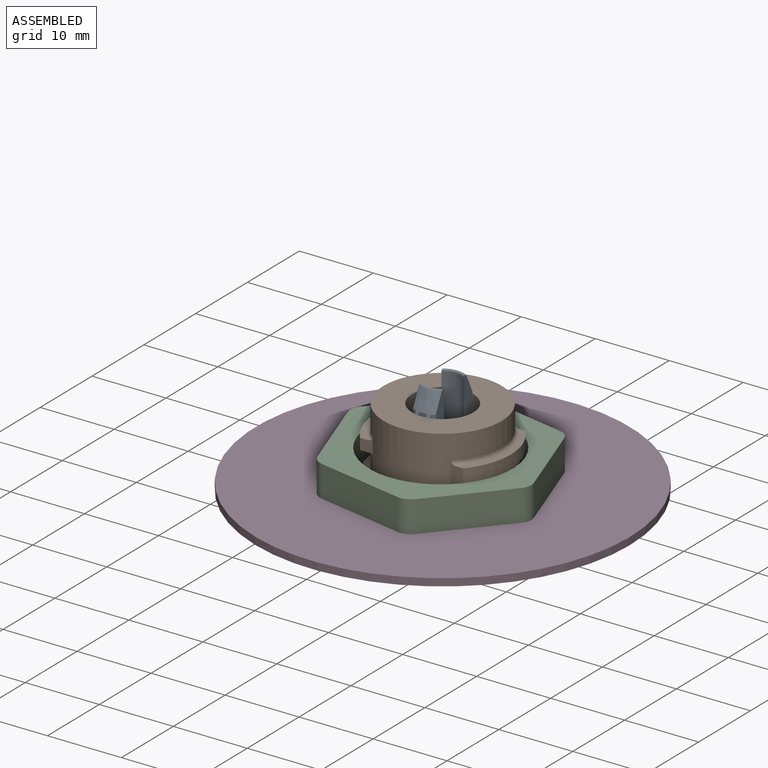
[diagram: assembled view]
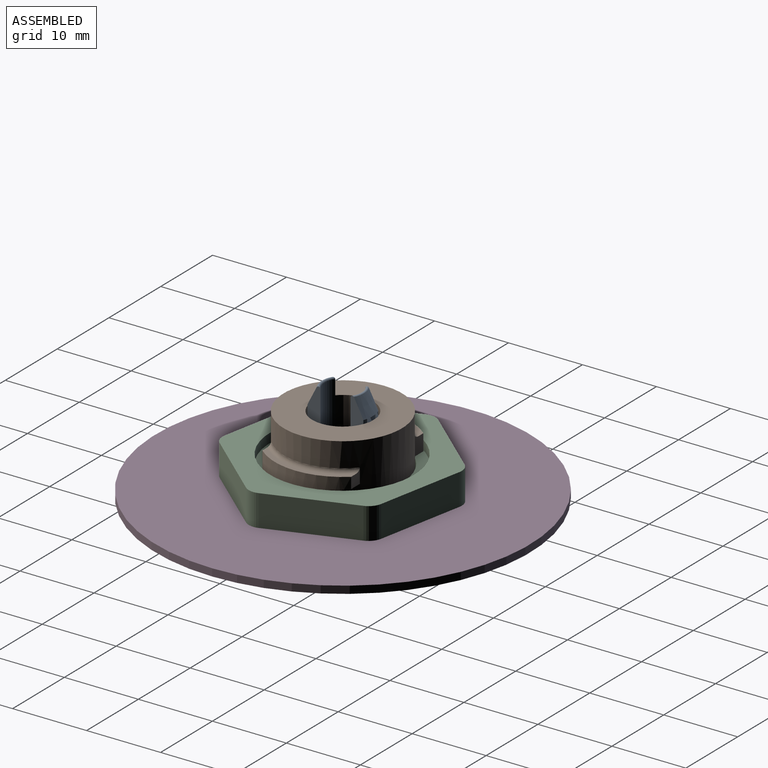
[diagram: assembled view, second angle]
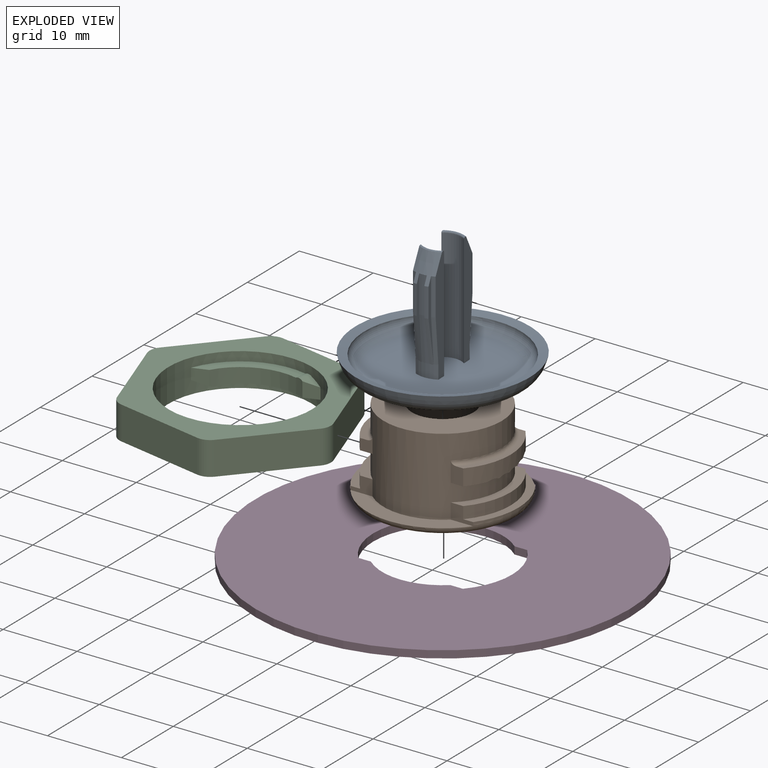
[diagram: exploded view]
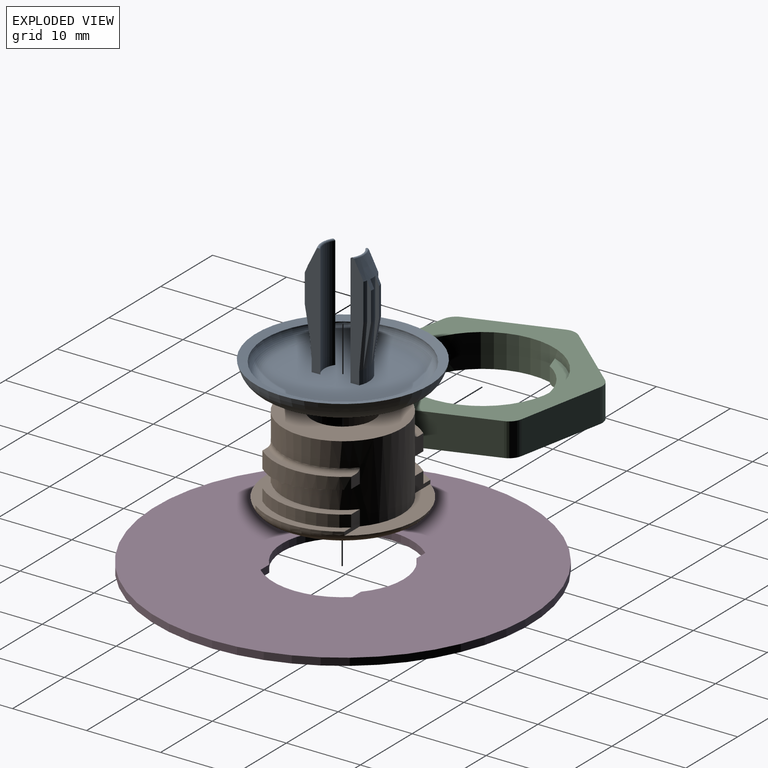
[diagram: exploded view, second angle]
ASSEMBLY  parts=4 mates=2
PART A: 42 faces, bbox 25.4x25.4x17 mm
  f0: plane 15.48x1.81mm, normal (0,-1,0), area 22mm2, adj f1,f11,f24,f32,f33,f34,f41
  f1: cylinder r=2.5mm len=15.18mm, axis (0,0,-1), area 48.8mm2, adj f0,f2,f24,f41
  f2: plane 15.48x1.81mm, normal (0,1,0), area 22mm2, adj f1,f12,f24,f32,f33,f34,f41
  f3: plane 15.48x1.81mm, normal (0,1,0), area 22mm2, adj f4,f19,f24,f29,f30,f31,f40
  f4: cylinder r=2.5mm len=15.18mm, axis (0,0,-1), area 48.8mm2, adj f3,f5,f24,f40
  f5: plane 15.48x1.81mm, normal (0,-1,0), area 22mm2, adj f4,f20,f24,f29,f30,f31,f40
  f6: plane 11x1.02mm, normal (0,-1,0), area 3.8mm2, adj f7,f14,f32,f34,f37
  f7: cylinder r=4mm len=5mm, axis (0,0,-1), area 5mm2, adj f6,f8,f32,f34
  f8: plane 11x1.02mm, normal (0,1,0), area 3.8mm2, adj f7,f9,f32,f34,f39
  f9: cylinder r=4.5mm len=3.92mm, axis (0,0,-1), area 2mm2, adj f8,f10,f32,f39
  f10: plane 11.01x1.07mm, normal (0,-1,0), area 3.8mm2, adj f9,f11,f32,f34,f39
  f11: cylinder r=4mm len=5mm, axis (0,0,-1), area 2.6mm2, adj f0,f10,f32,f34
  f12: cylinder r=4mm len=5mm, axis (0,0,-1), area 2.6mm2, adj f2,f13,f32,f34
  f13: plane 11.01x1.07mm, normal (0,1,0), area 3.8mm2, adj f12,f14,f32,f34,f37
  f14: cylinder r=4.5mm len=3.92mm, axis (0,0,-1), area 2mm2, adj f6,f13,f32,f37
  f15: cylinder r=4mm len=5mm, axis (0,0,-1), area 5mm2, adj f16,f23,f29,f30
  f16: plane 11x1.02mm, normal (0,-1,0), area 3.8mm2, adj f15,f17,f29,f30,f36
  f17: cylinder r=4.5mm len=3.92mm, axis (0,0,-1), area 2mm2, adj f16,f18,f29,f36
  f18: plane 11.01x1.07mm, normal (0,1,0), area 3.8mm2, adj f17,f19,f29,f30,f36
  f19: cylinder r=4mm len=5mm, axis (0,0,-1), area 2.6mm2, adj f3,f18,f29,f30
  f20: cylinder r=4mm len=5mm, axis (0,0,-1), area 2.6mm2, adj f5,f21,f29,f30
  f21: plane 11.01x1.07mm, normal (0,-1,0), area 3.8mm2, adj f20,f22,f29,f30,f38
  f22: cylinder r=4.5mm len=3.92mm, axis (0,0,-1), area 2mm2, adj f21,f23,f29,f38
  f23: plane 11x1.02mm, normal (0,1,0), area 3.8mm2, adj f15,f22,f29,f30,f38
  f24: plane 18.1x18.1mm, normal (0,0,1), area 251mm2, adj f0,f1,f2,f3,f4,f5,f27,f31
  f25: cone r=11.44mm half-angle=16.7deg, axis (0,0,1), area 49.8mm2, adj f28,f35
  f26: sphere r=77.14mm, area 257.2mm2, adj f35
  f27: torus R=9.05mm, axis (0,0,-1), area 148.1mm2, adj f24,f28
  f28: cone r=10.55mm half-angle=76deg, axis (0,0,1), area 86.7mm2, adj f25,f27
  f29: cone r=4.5mm half-angle=24.4deg, axis (0,0,-1), area 9.8mm2, adj f3,f5,f15,f16,f17,f18,f19,f20
  f30: cone r=4mm half-angle=4.8deg, axis (0,0,1), area 12.5mm2, adj f3,f5,f15,f16,f18,f19,f20,f21
  f31: cylinder r=3.5mm len=3mm, axis (0,0,1), area 5.6mm2, adj f3,f5,f24,f30
  f32: cone r=4.5mm half-angle=24.4deg, axis (0,0,-1), area 9.8mm2, adj f0,f2,f6,f7,f8,f9,f10,f11
  f33: cylinder r=3.5mm len=3mm, axis (0,0,1), area 5.6mm2, adj f0,f2,f24,f34
  f34: cone r=4mm half-angle=4.8deg, axis (0,0,1), area 12.5mm2, adj f0,f2,f6,f7,f8,f10,f11,f12
  f35: torus R=8.68mm, axis (0,0,1), area 230.1mm2, adj f25,f26
  f36: cone r=4.5mm half-angle=9.5deg, axis (0,0,1), area 3.1mm2, adj f16,f17,f18,f30
  f37: cone r=4.5mm half-angle=9.5deg, axis (0,0,1), area 3.1mm2, adj f6,f13,f14,f34
  f38: cone r=4.5mm half-angle=9.5deg, axis (0,0,1), area 3.1mm2, adj f21,f22,f23,f30
  f39: cone r=4.5mm half-angle=9.5deg, axis (0,0,1), area 3.1mm2, adj f8,f9,f10,f34
  f40: torus R=2.7mm, axis (0,0,-1), area 1.7mm2, adj f3,f4,f5,f29
  f41: torus R=2.7mm, axis (0,0,-1), area 1.7mm2, adj f0,f1,f2,f32
PART B: 51 faces, bbox 22.2x22.2x11.5 mm
  f0: plane 12x3.28mm, normal (0,0,1), area 13.6mm2, adj f1,f5,f6,f42
  f1: cylinder r=10.25mm len=12mm, axis (0,0,-1), area 3.8mm2, adj f0,f2,f5,f6
  f2: torus R=9.05mm, axis (0,0,-1), area 108.5mm2, adj f1,f3,f4,f5,f6,f37,f38,f49
  f3: plane 3.03x2.11mm, normal (0,1,0), area 4.2mm2, adj f2,f35,f36,f37,f43,f44,f50
  f4: plane 3.03x2.11mm, normal (0,-1,0), area 4.2mm2, adj f2,f35,f36,f37,f43,f44,f49
  f5: plane 3.03x2.11mm, normal (0,-1,0), area 4.2mm2, adj f0,f1,f2,f35,f42,f45,f49
  f6: plane 3.03x2.11mm, normal (0,1,0), area 4.2mm2, adj f0,f1,f2,f35,f42,f45,f50
  f7: plane 2.7x1.68mm, normal (0,1,0), area 3.8mm2, adj f8,f32,f35,f40,f46
  f8: plane 3.22x2.5mm, normal (0,0,-1), area 3.7mm2, adj f7,f34,f35,f40
  f9: plane 2.7x1.68mm, normal (0,-1,0), area 3.8mm2, adj f10,f20,f35,f41,f47
  f10: plane 3.22x2.5mm, normal (0,0,-1), area 3.7mm2, adj f9,f22,f35,f41
  f11: plane 2.7x1.43mm, normal (0,0.09,-1), area 2.2mm2, adj f12,f21,f35,f41
  f12: cylinder r=1.95mm len=2.11mm, axis (1,0,0), area 2mm2, adj f11,f13,f35,f41
  f13: plane 1.34x0.15mm, normal (0,0.09,-1), area 0.2mm2, adj f12,f14,f35,f41
  f14: cylinder r=1.95mm len=1.64mm, axis (1,0,0), area 1.9mm2, adj f13,f15,f35,f41
  f15: plane 1.24x0.15mm, normal (0,0.09,-1), area 0.2mm2, adj f14,f16,f35,f41
  f16: cylinder r=1.95mm len=1.49mm, axis (1,0,0), area 1.9mm2, adj f15,f17,f35,f41
  f17: plane 1.21x0.15mm, normal (0,0.09,-1), area 0.2mm2, adj f16,f18,f35,f41
  f18: cylinder r=1.95mm len=1.49mm, axis (1,0,0), area 1.9mm2, adj f17,f19,f35,f41
  f19: plane 1.27x0.15mm, normal (0,0.09,-1), area 0.2mm2, adj f18,f22,f35,f41
  f20: plane 12x3.18mm, normal (0,0,1), area 9.2mm2, adj f9,f21,f41,f47
  f21: plane 2x1.68mm, normal (0,1,0), area 2.6mm2, adj f11,f20,f35,f41,f47
  f22: cylinder r=1.95mm len=1.79mm, axis (1,0,0), area 2mm2, adj f10,f19,f35,f41
  f23: plane 2.7x1.43mm, normal (0,-0.09,-1), area 2.2mm2, adj f24,f33,f35,f40
  f24: cylinder r=1.95mm len=2.11mm, axis (-1,0,0), area 2mm2, adj f23,f25,f35,f40
  f25: plane 1.34x0.15mm, normal (0,-0.09,-1), area 0.2mm2, adj f24,f26,f35,f40
  f26: cylinder r=1.95mm len=1.64mm, axis (-1,0,0), area 1.9mm2, adj f25,f27,f35,f40
  f27: plane 1.24x0.15mm, normal (0,-0.09,-1), area 0.2mm2, adj f26,f28,f35,f40
  f28: cylinder r=1.95mm len=1.49mm, axis (-1,0,0), area 1.8mm2, adj f27,f29,f35,f40
  f29: plane 1.21x0.15mm, normal (0,-0.09,-1), area 0.2mm2, adj f28,f30,f35,f40
  f30: cylinder r=1.95mm len=1.49mm, axis (-1,0,0), area 1.9mm2, adj f29,f31,f35,f40
  f31: plane 1.27x0.15mm, normal (0,-0.09,-1), area 0.2mm2, adj f30,f34,f35,f40
  f32: plane 12x3.18mm, normal (0,0,1), area 9.2mm2, adj f7,f33,f40,f46
  f33: plane 2x1.68mm, normal (0,-1,0), area 2.6mm2, adj f23,f32,f35,f40,f46
  f34: cylinder r=1.95mm len=1.79mm, axis (-1,0,0), area 2mm2, adj f8,f31,f35,f40
  f35: cylinder r=8mm len=16mm, axis (0,0,-1), area 405.6mm2, adj f3,f4,f5,f6,f7,f8,f9,f10
  f36: plane 12x3.28mm, normal (0,0,1), area 13.6mm2, adj f3,f4,f37,f43
  f37: cylinder r=10.25mm len=12mm, axis (0,0,-1), area 3.8mm2, adj f2,f3,f4,f36
  f38: plane 18.1x18.1mm, normal (0,0,-1), area 203.2mm2, adj f2,f39
  f39: cylinder r=4.15mm len=11.5mm, axis (0,0,-1), area 299.9mm2, adj f38,f48
  f40: cylinder r=9.2mm len=12mm, axis (0,0,1), area 24.9mm2, adj f7,f8,f23,f24,f25,f26,f27,f28
  f41: cylinder r=9.2mm len=12mm, axis (0,0,1), area 24.9mm2, adj f9,f10,f11,f12,f13,f14,f15,f16
  f42: cylinder r=9.2mm len=12mm, axis (0,0,1), area 20.9mm2, adj f0,f5,f6,f45
  f43: cylinder r=9.2mm len=12mm, axis (0,0,1), area 20.9mm2, adj f3,f4,f36,f44
  f44: plane 12x3.91mm, normal (0,0,1), area 16mm2, adj f3,f4,f35,f43
  f45: plane 12x3.91mm, normal (0,0,1), area 16mm2, adj f5,f6,f35,f42
  f46: torus R=8.5mm, axis (0,0,-1), area 10.6mm2, adj f7,f32,f33,f35
  f47: torus R=8.5mm, axis (0,0,1), area 10.6mm2, adj f9,f20,f21,f35
  f48: plane 16x16mm, normal (0,0,1), area 147mm2, adj f35,f39
  f49: plane 16.58x4.23mm, normal (0,0,1), area 34.6mm2, adj f2,f4,f5,f35
  f50: plane 16.58x4.23mm, normal (0,0,1), area 34.6mm2, adj f2,f3,f6,f35
PART C: 33 faces, bbox 26.9x27.7x4.5 mm
  f0: cylinder r=1.28mm len=2.03mm, axis (0.66,0.75,0), area 1.9mm2, adj f1,f7,f8,f32
  f1: cylinder r=9.7mm len=19.4mm, axis (0,0,-1), area 207.6mm2, adj f0,f2,f3,f4,f5,f8,f9,f10
  f2: cylinder r=1.28mm len=2.03mm, axis (-0.66,-0.75,0), area 1.9mm2, adj f1,f5,f6,f31
  f3: plane 11.26x6.27mm, normal (0,0,1), area 18.4mm2, adj f1,f6,f11,f29
  f4: plane 11.26x6.27mm, normal (0,0,1), area 18.4mm2, adj f1,f7,f10,f27
  f5: plane 12.58x4.59mm, normal (0,0,-1), area 18.4mm2, adj f1,f2,f6,f9
  f6: cylinder r=8.2mm len=10.15mm, axis (0,0,-1), area 23.6mm2, adj f2,f3,f5,f9,f11,f29,f30
  f7: cylinder r=8.2mm len=10.15mm, axis (0,0,-1), area 23.6mm2, adj f0,f4,f8,f10,f12,f27
  f8: plane 12.58x4.59mm, normal (0,0,-1), area 18.4mm2, adj f0,f1,f7,f12
  f9: plane 2x1.98mm, normal (-0.95,-0.33,0), area 3.7mm2, adj f1,f5,f6,f30
  f10: plane 2x1.98mm, normal (0.95,0.33,0), area 3.7mm2, adj f1,f4,f7,f32
  f11: plane 2x1.98mm, normal (-0.95,-0.33,0), area 3.7mm2, adj f1,f3,f6,f31
  f12: plane 2x1.98mm, normal (0.95,0.33,0), area 3.7mm2, adj f1,f7,f8,f28
  f13: plane 11.43x4.5mm, normal (-0.33,0.95,0), area 54.4mm2, adj f19,f20,f25,f26
  f14: plane 9.13x7.93mm, normal (-0.66,-0.75,0), area 54.4mm2, adj f21,f22,f25,f26
  f15: plane 11.87x4.5mm, normal (0.98,-0.19,0), area 54.4mm2, adj f23,f24,f25,f26
  f16: plane 11.43x4.5mm, normal (0.33,-0.95,0), area 54.4mm2, adj f22,f23,f25,f26
  f17: plane 11.87x4.5mm, normal (-0.98,0.19,0), area 54.4mm2, adj f20,f21,f25,f26
  f18: plane 9.13x7.93mm, normal (0.66,0.75,0), area 54.4mm2, adj f19,f24,f25,f26
  f19: cylinder r=2mm len=4.5mm, axis (0,0,1), area 9.4mm2, adj f13,f18,f25,f26
  f20: cylinder r=2mm len=4.5mm, axis (0,0,1), area 9.4mm2, adj f13,f17,f25,f26
  f21: cylinder r=2mm len=4.5mm, axis (0,0,1), area 9.4mm2, adj f14,f17,f25,f26
  f22: cylinder r=2mm len=4.5mm, axis (0,0,1), area 9.4mm2, adj f14,f16,f25,f26
  f23: cylinder r=2mm len=4.5mm, axis (0,0,1), area 9.4mm2, adj f15,f16,f25,f26
  f24: cylinder r=2mm len=4.5mm, axis (0,0,1), area 9.4mm2, adj f15,f18,f25,f26
  f25: plane 27.74x26.86mm, normal (0,0,1), area 241.9mm2, adj f1,f13,f14,f15,f16,f17,f18,f19
  f26: plane 27.74x26.86mm, normal (0,0,-1), area 241.9mm2, adj f1,f13,f14,f15,f16,f17,f18,f19
  f27: cylinder r=1.28mm len=1.84mm, axis (0.98,-0.19,0), area 1.9mm2, adj f1,f4,f7,f28
  f28: plane 1.99x1.5mm, normal (0.05,0.26,0.96), area 1.5mm2, adj f1,f12,f27
  f29: cylinder r=1.26mm len=1.84mm, axis (-0.98,0.19,0), area 1.9mm2, adj f1,f3,f6,f30
  f30: plane 1.99x1.5mm, normal (-0.05,-0.26,0.96), area 1.5mm2, adj f1,f6,f9,f29
  f31: plane 1.99x1.69mm, normal (-0.2,0.17,-0.96), area 1.5mm2, adj f1,f2,f11
  f32: plane 1.99x1.69mm, normal (0.2,-0.17,-0.96), area 1.5mm2, adj f0,f1,f10
PART D: 11 faces, bbox 50.5x50.5x1 mm
  f0: cylinder r=8.2mm len=10.73mm, axis (0,0,-1), area 11.7mm2, adj f1,f7,f9,f10
  f1: plane 1.7x1mm, normal (0,-1,0), area 1.7mm2, adj f0,f2,f9,f10
  f2: cylinder r=9.4mm len=12.4mm, axis (0,0,-1), area 13.5mm2, adj f1,f3,f9,f10
  f3: plane 1.7x1mm, normal (0,1,0), area 1.7mm2, adj f2,f4,f9,f10
  f4: cylinder r=8.2mm len=10.73mm, axis (0,0,-1), area 11.7mm2, adj f3,f5,f9,f10
  f5: plane 1.7x1mm, normal (0,1,0), area 1.7mm2, adj f4,f6,f9,f10
  f6: cylinder r=9.4mm len=12.4mm, axis (0,0,-1), area 13.5mm2, adj f5,f7,f9,f10
  f7: plane 1.7x1mm, normal (0,-1,0), area 1.7mm2, adj f0,f6,f9,f10
  f8: cylinder r=25.25mm len=50.5mm, axis (0,0,-1), area 158.7mm2, adj f9,f10
  f9: plane 50.5x50.5mm, normal (0,0,1), area 1758.7mm2, adj f0,f1,f2,f3,f4,f5,f6,f7
  f10: plane 50.5x50.5mm, normal (0,0,-1), area 1758.7mm2, adj f0,f1,f2,f3,f4,f5,f6,f7
PLACE A rot(axis=(0,0,-1),88.3deg) t=(1.12,0.42,-0.84)mm
PLACE B t=(1.12,0.42,-0.24)mm
PLACE C rot(axis=(0,0,-1),90deg) t=(0.99,0.23,-0.84)mm
PLACE D t=(1.12,0.42,-0.84)mm fixed
MATE fastened B.f1 <-> D.f8  axis (0,0,-1) through (1.12,0.42,-0.74)mm
MATE cylindrical B.f1 <-> A.f4  axis (0,0,-1) through (1.12,0.42,-1.74)mm
